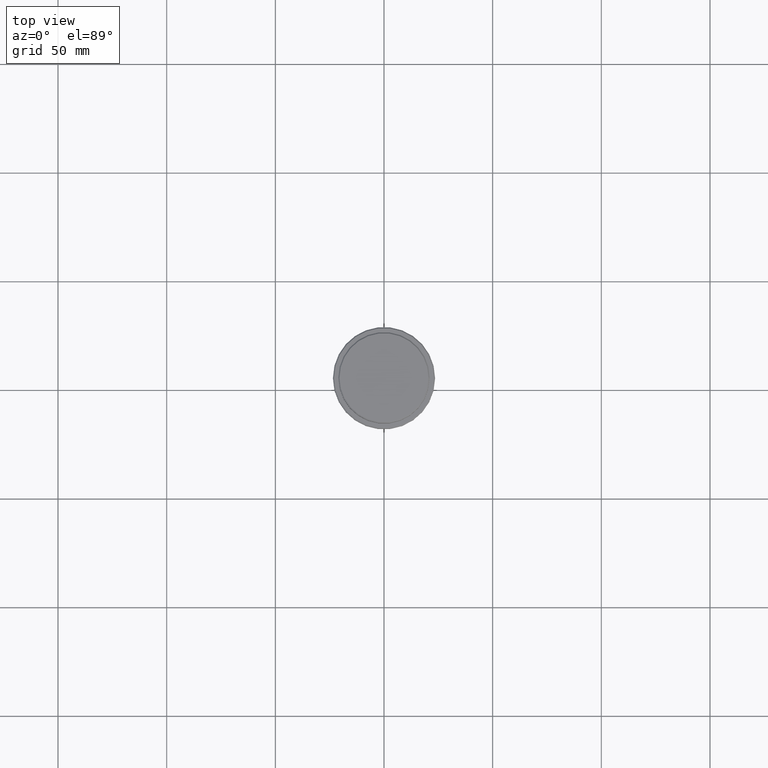
[diagram: clean part render]
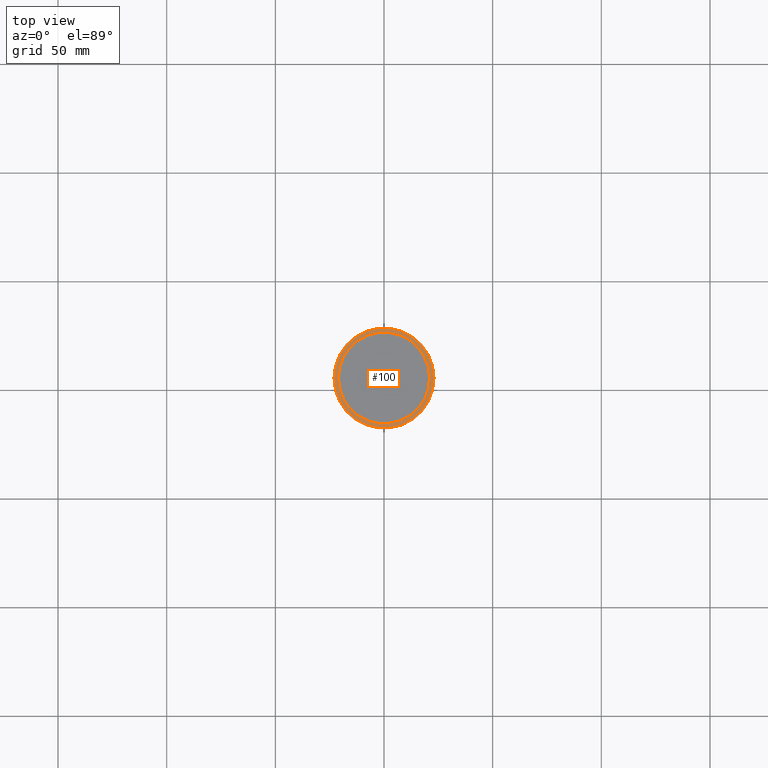
[diagram: same view with one face highlighted and labeled with its STEP entity id]
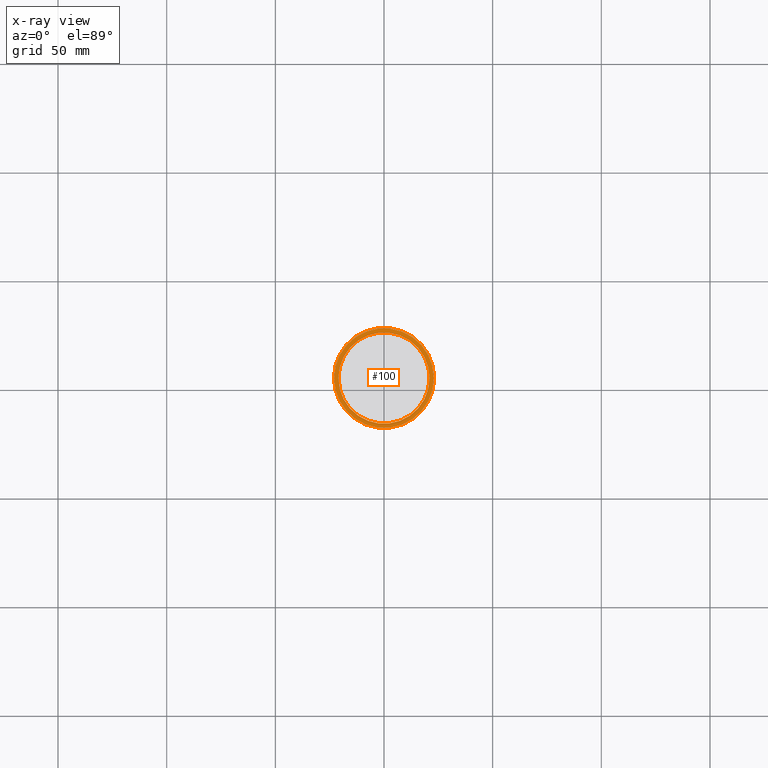
[diagram: x-ray of the same camera — body ghosted, the highlighted face saturated]
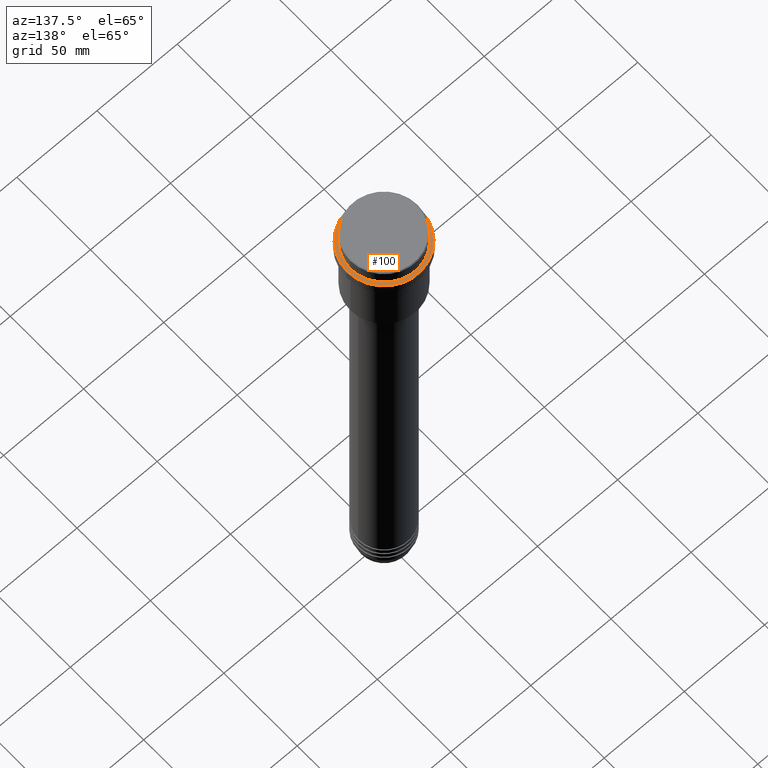
[diagram: same view with one face highlighted and labeled with its STEP entity id]
A machine part, top view. The second image highlights one B-rep face of the part: STEP entity #100.
The next image is the same camera in x-ray: the body ghosted, the highlighted face saturated — about 0% of this face is hidden behind the body in this view.
A second angle (auxiliary view) of the same face is appended — the face is thin or edge-on in the first view.
In plain terms, the highlighted planar face has unit normal (0, -0, 1).
Its self-contained STEP definition (entity closure, byte-faithful):
#42 = EDGE_LOOP ( 'NONE', ( #1090, #1018 ) ) ;
#59 = EDGE_CURVE ( 'NONE', #261, #1289, #430, .T. ) ;
#90 = CARTESIAN_POINT ( 'NONE',  ( 0.000000000000000000, 0.000000000000000000, -9.000000000000001776 ) ) ;
#100 = ADVANCED_FACE ( 'NONE', ( #439, #783 ), #425, .T. ) ;
#109 = EDGE_CURVE ( 'NONE', #1083, #686, #1290, .T. ) ;
#114 = DIRECTION ( 'NONE',  ( 0.000000000000000000, 0.000000000000000000, -1.000000000000000000 ) ) ;
#199 = DIRECTION ( 'NONE',  ( 1.000000000000000000, 0.000000000000000000, 0.000000000000000000 ) ) ;
#212 = DIRECTION ( 'NONE',  ( -0.000000000000000000, -0.000000000000000000, 1.000000000000000000 ) ) ;
#228 = CARTESIAN_POINT ( 'NONE',  ( 0.000000000000000000, 0.000000000000000000, -9.000000000000001776 ) ) ;
#238 = DIRECTION ( 'NONE',  ( 1.000000000000000000, 0.000000000000000000, 0.000000000000000000 ) ) ;
#261 = VERTEX_POINT ( 'NONE', #373 ) ;
#341 = AXIS2_PLACEMENT_3D ( 'NONE', #882, #114, #1322 ) ;
#373 = CARTESIAN_POINT ( 'NONE',  ( 23.00000000000005329, 2.847303808017599689E-15, -9.000000000000001776 ) ) ;
#415 = AXIS2_PLACEMENT_3D ( 'NONE', #866, #212, #995 ) ;
#425 = PLANE ( 'NONE',  #1221 ) ;
#430 = CIRCLE ( 'NONE', #852, 23.00000000000005329 ) ;
#439 = FACE_OUTER_BOUND ( 'NONE', #42, .T. ) ;
#495 = EDGE_LOOP ( 'NONE', ( #1098, #1171 ) ) ;
#573 = CARTESIAN_POINT ( 'NONE',  ( -23.00000000000005329, 0.000000000000000000, -9.000000000000001776 ) ) ;
#686 = VERTEX_POINT ( 'NONE', #1244 ) ;
#690 = CARTESIAN_POINT ( 'NONE',  ( -20.99999999999999289, 2.571758278209440872E-15, -9.000000000000001776 ) ) ;
#762 = CARTESIAN_POINT ( 'NONE',  ( 0.000000000000000000, 20.49999999999999645, -9.000000000000001776 ) ) ;
#776 = DIRECTION ( 'NONE',  ( 1.000000000000000000, 0.000000000000000000, 0.000000000000000000 ) ) ;
#783 = FACE_BOUND ( 'NONE', #495, .T. ) ;
#852 = AXIS2_PLACEMENT_3D ( 'NONE', #228, #1328, #776 ) ;
#866 = CARTESIAN_POINT ( 'NONE',  ( 0.000000000000000000, 0.000000000000000000, -9.000000000000001776 ) ) ;
#877 = AXIS2_PLACEMENT_3D ( 'NONE', #90, #1413, #199 ) ;
#882 = CARTESIAN_POINT ( 'NONE',  ( 0.000000000000000000, 0.000000000000000000, -9.000000000000001776 ) ) ;
#964 = EDGE_CURVE ( 'NONE', #1289, #261, #1294, .T. ) ;
#991 = CIRCLE ( 'NONE', #877, 20.99999999999999289 ) ;
#995 = DIRECTION ( 'NONE',  ( 1.000000000000000000, 0.000000000000000000, 0.000000000000000000 ) ) ;
#1018 = ORIENTED_EDGE ( 'NONE', *, *, #59, .T. ) ;
#1083 = VERTEX_POINT ( 'NONE', #690 ) ;
#1090 = ORIENTED_EDGE ( 'NONE', *, *, #964, .T. ) ;
#1098 = ORIENTED_EDGE ( 'NONE', *, *, #1124, .T. ) ;
#1124 = EDGE_CURVE ( 'NONE', #686, #1083, #991, .T. ) ;
#1171 = ORIENTED_EDGE ( 'NONE', *, *, #109, .T. ) ;
#1204 = DIRECTION ( 'NONE',  ( 0.000000000000000000, -0.000000000000000000, 1.000000000000000000 ) ) ;
#1221 = AXIS2_PLACEMENT_3D ( 'NONE', #762, #1204, #238 ) ;
#1244 = CARTESIAN_POINT ( 'NONE',  ( 20.99999999999999289, 0.000000000000000000, -9.000000000000001776 ) ) ;
#1289 = VERTEX_POINT ( 'NONE', #573 ) ;
#1290 = CIRCLE ( 'NONE', #341, 20.99999999999999289 ) ;
#1294 = CIRCLE ( 'NONE', #415, 23.00000000000005329 ) ;
#1322 = DIRECTION ( 'NONE',  ( 1.000000000000000000, 0.000000000000000000, 0.000000000000000000 ) ) ;
#1328 = DIRECTION ( 'NONE',  ( -0.000000000000000000, -0.000000000000000000, 1.000000000000000000 ) ) ;
#1413 = DIRECTION ( 'NONE',  ( 0.000000000000000000, 0.000000000000000000, -1.000000000000000000 ) ) ;